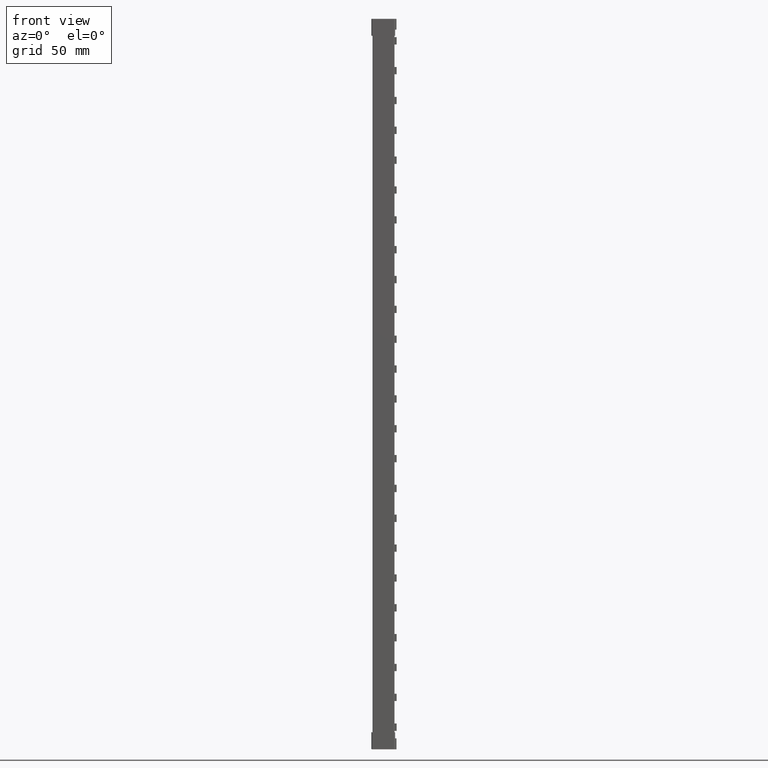
[diagram: clean part render]
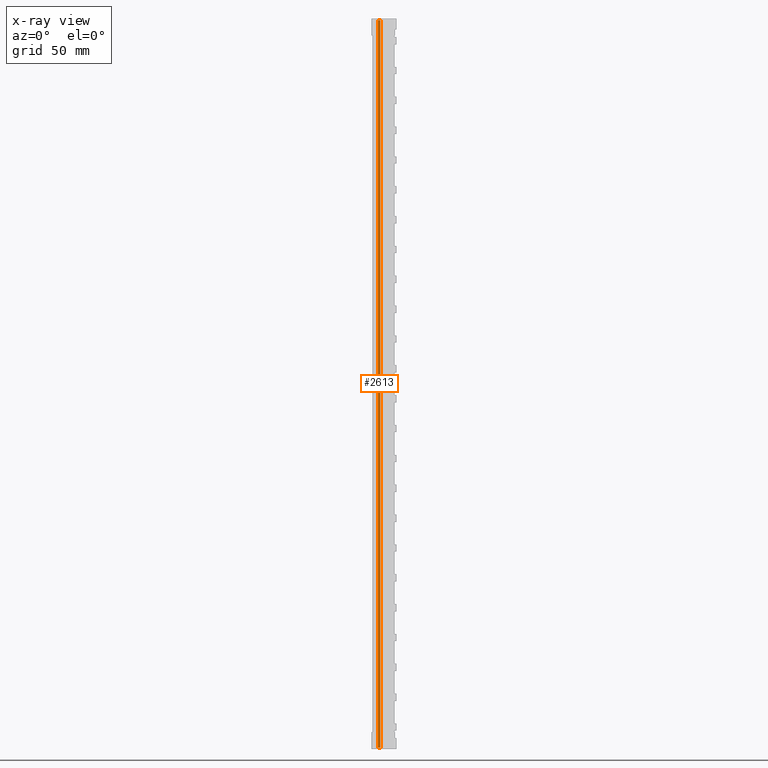
[diagram: x-ray — body ghosted, one internal face saturated and labeled with its STEP entity id]
A machine part, front view, then the same camera in x-ray: the body is ghosted and one INTERNAL B-rep face — a face not visible from any outside direction — is saturated and labeled: STEP entity #2613.
In plain terms, the highlighted cylindrical surface (edge-blend (fillet) strip) has radius 1.8 mm, axis along (0, 0, 1).
Its self-contained STEP definition (entity closure, byte-faithful):
#1235 = EDGE_LOOP ( 'NONE', ( #8055, #8037, #8060, #8035, #8027, #8061, #8045, #7960 ) ) ;
#2613 = ADVANCED_FACE ( 'NONE', ( #27281 ), #27280, .T. ) ;
#3471 = CARTESIAN_POINT ( 'NONE',  ( 2.699069104079016700, 5.096726813250046300, 213.5000000000000600 ) ) ;
#3487 = DIRECTION ( 'NONE',  ( 3.864550688587075300E-026, -3.939912114750719300E-031, 1.000000000000000000 ) ) ;
#3655 = DIRECTION ( 'NONE',  ( 1.174935236590071400E-018, 5.041208906165829300E-019, 1.000000000000000000 ) ) ;
#3661 = LINE ( 'NONE', #3695, #9405 ) ;
#3695 = CARTESIAN_POINT ( 'NONE',  ( 4.023610798727806200, 5.048035521101578400, 219.0000000000000000 ) ) ;
#3800 = LINE ( 'NONE', #3827, #9322 ) ;
#3827 = CARTESIAN_POINT ( 'NONE',  ( 2.699069104079016700, 5.096726813250046300, 209.9000000000000100 ) ) ;
#3829 = DIRECTION ( 'NONE',  ( -0.9426259865236238400, -0.3338506395536254300, 3.642812751878571300E-026 ) ) ;
#3994 = LINE ( 'NONE', #3471, #9385 ) ;
#4134 = VECTOR ( 'NONE', #15843, 1000.000000000000100 ) ;
#4148 = CIRCLE ( 'NONE', #4163, 1.800000000000000000 ) ;
#4163 = AXIS2_PLACEMENT_3D ( 'NONE', #15868, #15876, #15936 ) ;
#4164 = VECTOR ( 'NONE', #15831, 1000.000000000000000 ) ;
#4257 = VECTOR ( 'NONE', #15921, 1000.000000000000000 ) ;
#5362 = EDGE_CURVE ( 'NONE', #26481, #26517, #10874, .T. ) ;
#5430 = EDGE_CURVE ( 'NONE', #26254, #26243, #3800, .T. ) ;
#5487 = EDGE_CURVE ( 'NONE', #26254, #26517, #3994, .T. ) ;
#5530 = EDGE_CURVE ( 'NONE', #24958, #26481, #3661, .T. ) ;
#7960 = ORIENTED_EDGE ( 'NONE', *, *, #12858, .F. ) ;
#8027 = ORIENTED_EDGE ( 'NONE', *, *, #12913, .T. ) ;
#8035 = ORIENTED_EDGE ( 'NONE', *, *, #5530, .F. ) ;
#8037 = ORIENTED_EDGE ( 'NONE', *, *, #5487, .T. ) ;
#8045 = ORIENTED_EDGE ( 'NONE', *, *, #12849, .T. ) ;
#8055 = ORIENTED_EDGE ( 'NONE', *, *, #5430, .F. ) ;
#8060 = ORIENTED_EDGE ( 'NONE', *, *, #5362, .F. ) ;
#8061 = ORIENTED_EDGE ( 'NONE', *, *, #12943, .F. ) ;
#8264 = CARTESIAN_POINT ( 'NONE',  ( 3.299859964215052300, 3.399950350504472600, 219.0000000000000000 ) ) ;
#8350 = DIRECTION ( 'NONE',  ( 1.000000000000000000, 0.0000000000000000000, 0.0000000000000000000 ) ) ;
#8371 = DIRECTION ( 'NONE',  ( 0.0000000000000000000, 0.0000000000000000000, 1.000000000000000000 ) ) ;
#9322 = VECTOR ( 'NONE', #3829, 1000.000000000000100 ) ;
#9385 = VECTOR ( 'NONE', #3487, 1000.000000000000000 ) ;
#9405 = VECTOR ( 'NONE', #3655, 1000.000000000000000 ) ;
#10874 = CIRCLE ( 'NONE', #10899, 1.800000000000000000 ) ;
#10899 = AXIS2_PLACEMENT_3D ( 'NONE', #8264, #8371, #8350 ) ;
#12849 = EDGE_CURVE ( 'NONE', #25698, #25785, #15851, .T. ) ;
#12858 = EDGE_CURVE ( 'NONE', #26243, #25785, #15847, .T. ) ;
#12913 = EDGE_CURVE ( 'NONE', #24958, #25710, #4148, .T. ) ;
#12943 = EDGE_CURVE ( 'NONE', #25698, #25710, #15932, .T. ) ;
#15817 = CARTESIAN_POINT ( 'NONE',  ( 2.698928813018487200, 5.096677126246981400, 199.0000000000000000 ) ) ;
#15831 = DIRECTION ( 'NONE',  ( 0.0000000000000000000, 0.0000000000000000000, -1.000000000000000000 ) ) ;
#15843 = DIRECTION ( 'NONE',  ( -0.9426259865236238400, -0.3338506395536254300, -3.642812751878571300E-026 ) ) ;
#15847 = LINE ( 'NONE', #15817, #4164 ) ;
#15851 = LINE ( 'NONE', #15861, #4134 ) ;
#15861 = CARTESIAN_POINT ( 'NONE',  ( 2.699069104079016700, 5.096726813250046300, -200.9000000000000100 ) ) ;
#15868 = CARTESIAN_POINT ( 'NONE',  ( 3.299859964215051900, 3.399950350504472600, -210.0000000000000000 ) ) ;
#15876 = DIRECTION ( 'NONE',  ( -3.864550688587075300E-026, 3.939912114750719300E-031, 1.000000000000000000 ) ) ;
#15921 = DIRECTION ( 'NONE',  ( 3.864550688587075300E-026, -3.939912114750719300E-031, -1.000000000000000000 ) ) ;
#15932 = LINE ( 'NONE', #15957, #4257 ) ;
#15936 = DIRECTION ( 'NONE',  ( -1.000000000000000000, 6.987080667128806400E-015, 0.0000000000000000000 ) ) ;
#15957 = CARTESIAN_POINT ( 'NONE',  ( 2.699069104079016700, 5.096726813250046300, -204.5000000000000600 ) ) ;
#24958 = VERTEX_POINT ( 'NONE', #29176 ) ;
#25698 = VERTEX_POINT ( 'NONE', #28224 ) ;
#25710 = VERTEX_POINT ( 'NONE', #28164 ) ;
#25785 = VERTEX_POINT ( 'NONE', #28226 ) ;
#26243 = VERTEX_POINT ( 'NONE', #28699 ) ;
#26254 = VERTEX_POINT ( 'NONE', #28786 ) ;
#26481 = VERTEX_POINT ( 'NONE', #28929 ) ;
#26517 = VERTEX_POINT ( 'NONE', #28968 ) ;
#27240 = DIRECTION ( 'NONE',  ( 1.000000000000000000, 0.0000000000000000000, 0.0000000000000000000 ) ) ;
#27251 = CARTESIAN_POINT ( 'NONE',  ( 3.299859964215052300, 3.399950350504472600, 219.0101000000000200 ) ) ;
#27280 = CYLINDRICAL_SURFACE ( 'NONE', #30310, 1.800000000000000000 ) ;
#27281 = FACE_OUTER_BOUND ( 'NONE', #1235, .T. ) ;
#27283 = DIRECTION ( 'NONE',  ( 1.174935236590071400E-018, 5.041208906165829300E-019, 1.000000000000000000 ) ) ;
#28164 = CARTESIAN_POINT ( 'NONE',  ( 2.699069104079016700, 5.096726813250046300, -210.0000000000000000 ) ) ;
#28224 = CARTESIAN_POINT ( 'NONE',  ( 2.699069104079016700, 5.096726813250046300, -200.9000000000000100 ) ) ;
#28226 = CARTESIAN_POINT ( 'NONE',  ( 2.698928813018487200, 5.096677126246981400, -200.9000000000000100 ) ) ;
#28699 = CARTESIAN_POINT ( 'NONE',  ( 2.698928813018487600, 5.096677126246981400, 209.9000000000000100 ) ) ;
#28786 = CARTESIAN_POINT ( 'NONE',  ( 2.699069104079016700, 5.096726813250046300, 209.9000000000000100 ) ) ;
#28929 = CARTESIAN_POINT ( 'NONE',  ( 4.023610798727804500, 5.048035521101579300, 219.0000000000000000 ) ) ;
#28968 = CARTESIAN_POINT ( 'NONE',  ( 2.699069104079016700, 5.096726813250046300, 219.0000000000000000 ) ) ;
#29176 = CARTESIAN_POINT ( 'NONE',  ( 4.023610798727805400, 5.048035521101578400, -210.0000000000000000 ) ) ;
#30310 = AXIS2_PLACEMENT_3D ( 'NONE', #27251, #27283, #27240 ) ;